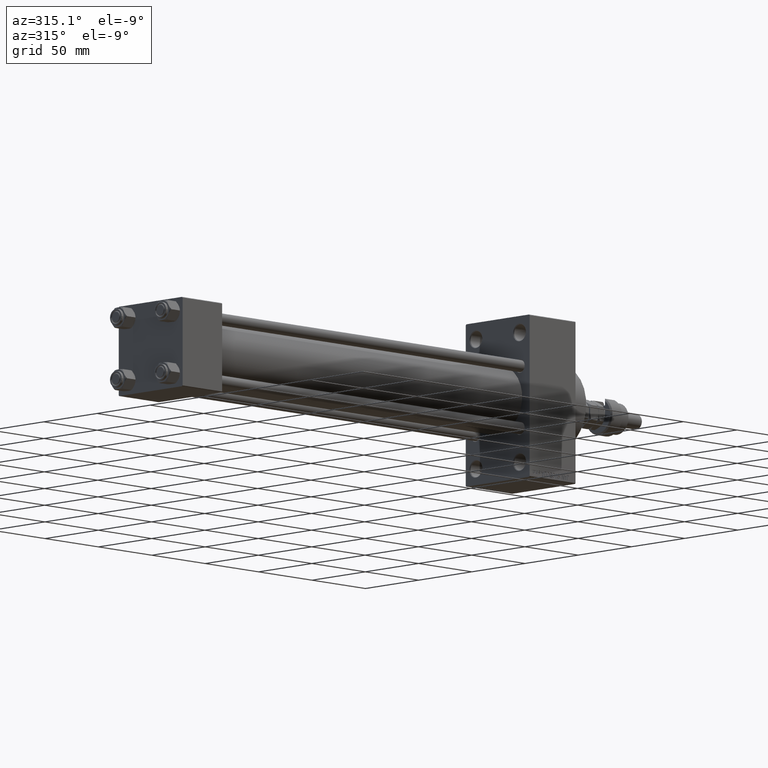
[diagram: clean part render]
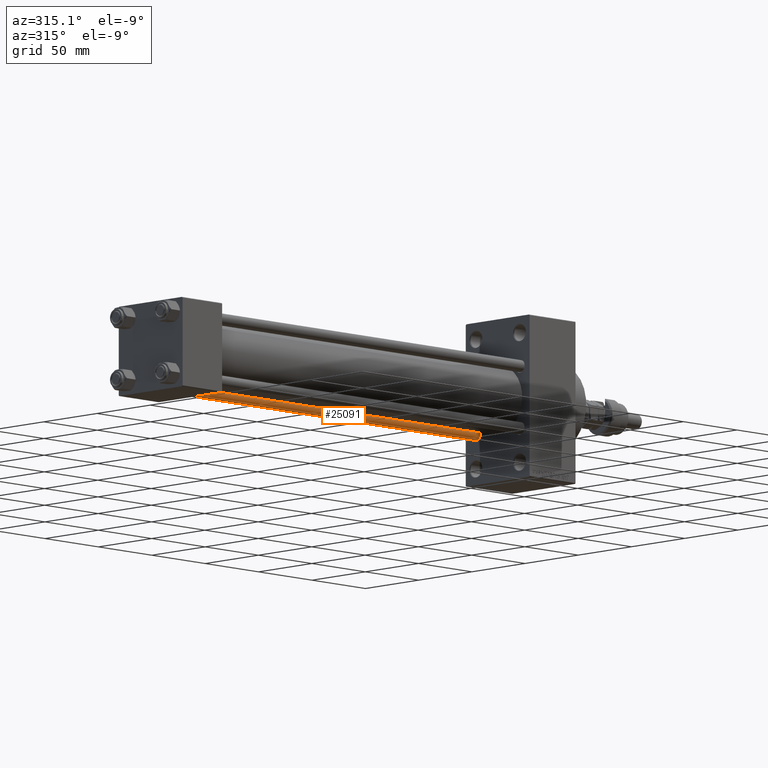
[diagram: same view with one face highlighted and labeled with its STEP entity id]
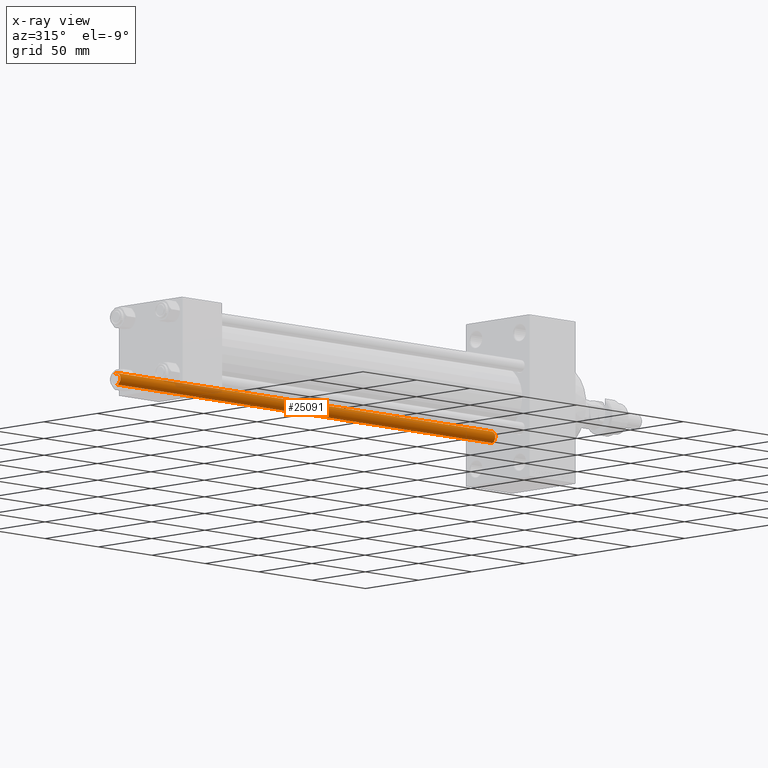
[diagram: x-ray of the same camera — body ghosted, the highlighted face saturated]
A machine part, auxiliary view. The second image highlights one B-rep face of the part: STEP entity #25091.
The next image is the same camera in x-ray: the body ghosted, the highlighted face saturated — about 6% of this face is hidden behind the body in this view.
In plain terms, the highlighted cylindrical surface (edge-blend (fillet) strip) has radius 4 mm, axis along (1, -0, 0).
Its self-contained STEP definition (entity closure, byte-faithful):
#3079 = DIRECTION ( 'NONE',  ( 1.000000000000000000, 0.000000000000000000, 0.000000000000000000 ) ) ;
#5797 = VERTEX_POINT ( 'NONE', #46374 ) ;
#13038 = DIRECTION ( 'NONE',  ( -1.000000000000000000, 0.000000000000000000, 0.000000000000000000 ) ) ;
#13296 = CARTESIAN_POINT ( 'NONE',  ( 0.000000000000000000, 0.000000000000000000, 352.0000000000000000 ) ) ;
#14286 = VERTEX_POINT ( 'NONE', #50319 ) ;
#14825 = ORIENTED_EDGE ( 'NONE', *, *, #30641, .T. ) ;
#16003 = CARTESIAN_POINT ( 'NONE',  ( -4.000000000000000000, 0.000000000000000000, 352.0000000000000000 ) ) ;
#19962 = EDGE_CURVE ( 'NONE', #14286, #31452, #29721, .T. ) ;
#20322 = ORIENTED_EDGE ( 'NONE', *, *, #19962, .F. ) ;
#21565 = CARTESIAN_POINT ( 'NONE',  ( -4.000000000000000000, 0.000000000000000000, 351.5000000000000000 ) ) ;
#21690 = ORIENTED_EDGE ( 'NONE', *, *, #32592, .T. ) ;
#24620 = EDGE_CURVE ( 'NONE', #51207, #5797, #40225, .T. ) ;
#25061 = CARTESIAN_POINT ( 'NONE',  ( 4.000000000000000000, 4.898587196589412829E-16, 0.5000000000000004441 ) ) ;
#25091 = ADVANCED_FACE ( 'NONE', ( #45414 ), #49618, .T. ) ;
#26130 = DIRECTION ( 'NONE',  ( 1.000000000000000000, 0.000000000000000000, 0.000000000000000000 ) ) ;
#26389 = CARTESIAN_POINT ( 'NONE',  ( 0.000000000000000000, 0.000000000000000000, 351.5000000000000000 ) ) ;
#29721 = LINE ( 'NONE', #50262, #41226 ) ;
#30641 = EDGE_CURVE ( 'NONE', #5797, #31452, #51605, .T. ) ;
#31452 = VERTEX_POINT ( 'NONE', #25061 ) ;
#32592 = EDGE_CURVE ( 'NONE', #14286, #51207, #48333, .T. ) ;
#33742 = AXIS2_PLACEMENT_3D ( 'NONE', #13296, #40685, #13038 ) ;
#33765 = DIRECTION ( 'NONE',  ( 0.000000000000000000, 0.000000000000000000, -1.000000000000000000 ) ) ;
#39417 = CARTESIAN_POINT ( 'NONE',  ( 0.000000000000000000, 0.000000000000000000, 0.5000000000000004441 ) ) ;
#40225 = LINE ( 'NONE', #16003, #48104 ) ;
#40685 = DIRECTION ( 'NONE',  ( -0.000000000000000000, -0.000000000000000000, -1.000000000000000000 ) ) ;
#40695 = AXIS2_PLACEMENT_3D ( 'NONE', #39417, #49782, #3079 ) ;
#41226 = VECTOR ( 'NONE', #45791, 1000.000000000000000 ) ;
#43236 = EDGE_LOOP ( 'NONE', ( #20322, #21690, #44241, #14825 ) ) ;
#44241 = ORIENTED_EDGE ( 'NONE', *, *, #24620, .T. ) ;
#45414 = FACE_OUTER_BOUND ( 'NONE', #43236, .T. ) ;
#45791 = DIRECTION ( 'NONE',  ( -0.000000000000000000, -0.000000000000000000, -1.000000000000000000 ) ) ;
#46374 = CARTESIAN_POINT ( 'NONE',  ( -4.000000000000000000, 0.000000000000000000, 0.5000000000000004441 ) ) ;
#48104 = VECTOR ( 'NONE', #48130, 1000.000000000000000 ) ;
#48130 = DIRECTION ( 'NONE',  ( -0.000000000000000000, -0.000000000000000000, -1.000000000000000000 ) ) ;
#48333 = CIRCLE ( 'NONE', #49181, 4.000000000000000000 ) ;
#49181 = AXIS2_PLACEMENT_3D ( 'NONE', #26389, #33765, #26130 ) ;
#49618 = CYLINDRICAL_SURFACE ( 'NONE', #33742, 4.000000000000000000 ) ;
#49782 = DIRECTION ( 'NONE',  ( -0.000000000000000000, -0.000000000000000000, 1.000000000000000000 ) ) ;
#50262 = CARTESIAN_POINT ( 'NONE',  ( 4.000000000000000000, 4.898587196589412829E-16, 352.0000000000000000 ) ) ;
#50319 = CARTESIAN_POINT ( 'NONE',  ( 4.000000000000000000, 4.898587196589412829E-16, 351.5000000000000000 ) ) ;
#51207 = VERTEX_POINT ( 'NONE', #21565 ) ;
#51605 = CIRCLE ( 'NONE', #40695, 4.000000000000000000 ) ;